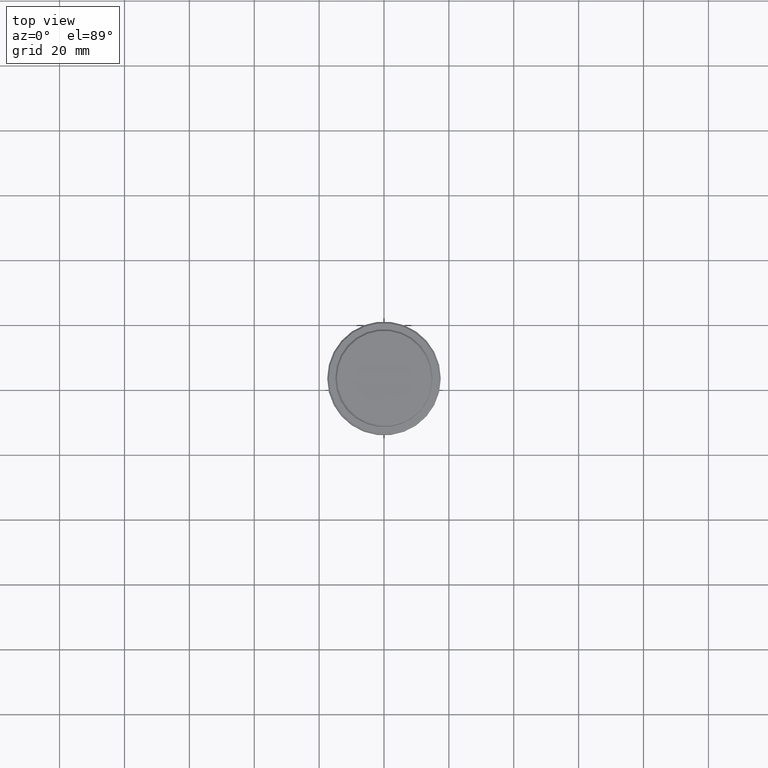
[diagram: clean part render]
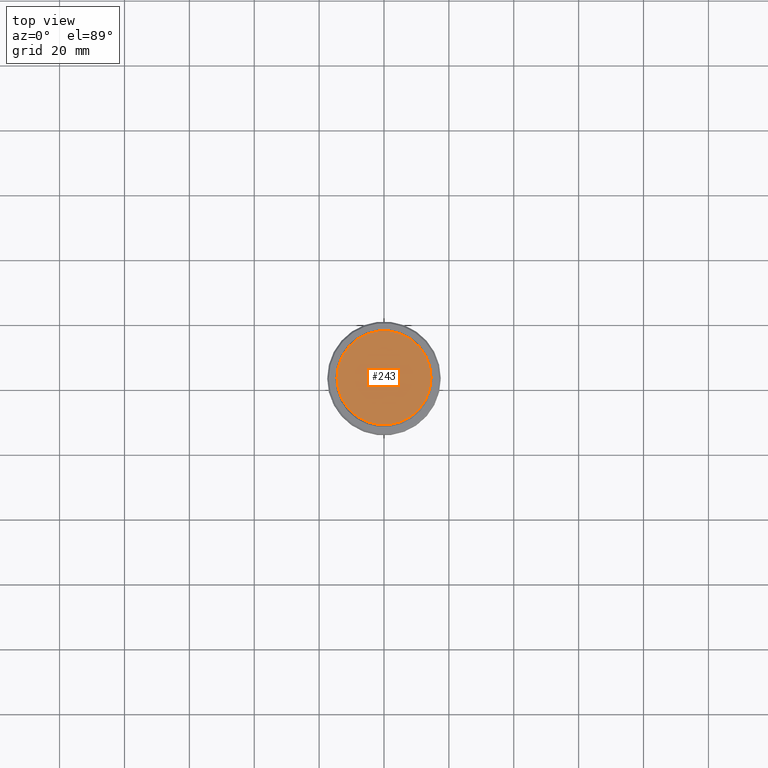
[diagram: same view with one face highlighted and labeled with its STEP entity id]
A machine part, top view. The second image highlights one B-rep face of the part: STEP entity #243.
In plain terms, the highlighted planar face has unit normal (0, -0, 1).
Its self-contained STEP definition (entity closure, byte-faithful):
#81 = CIRCLE ( 'NONE', #1362, 14.49999999999998401 ) ;
#99 = EDGE_CURVE ( 'NONE', #1263, #874, #81, .T. ) ;
#243 = ADVANCED_FACE ( 'NONE', ( #747 ), #956, .T. ) ;
#260 = DIRECTION ( 'NONE',  ( 0.000000000000000000, -0.000000000000000000, 1.000000000000000000 ) ) ;
#283 = EDGE_LOOP ( 'NONE', ( #441, #1222 ) ) ;
#297 = CARTESIAN_POINT ( 'NONE',  ( 0.000000000000000000, 0.000000000000000000, 0.000000000000000000 ) ) ;
#301 = DIRECTION ( 'NONE',  ( 1.000000000000000000, 0.000000000000000000, 0.000000000000000000 ) ) ;
#352 = AXIS2_PLACEMENT_3D ( 'NONE', #980, #260, #679 ) ;
#356 = CIRCLE ( 'NONE', #1364, 14.49999999999998401 ) ;
#441 = ORIENTED_EDGE ( 'NONE', *, *, #99, .T. ) ;
#564 = CARTESIAN_POINT ( 'NONE',  ( 14.49999999999998401, 1.806354028742345013E-15, 0.000000000000000000 ) ) ;
#632 = EDGE_CURVE ( 'NONE', #874, #1263, #356, .T. ) ;
#679 = DIRECTION ( 'NONE',  ( 1.000000000000000000, 0.000000000000000000, 0.000000000000000000 ) ) ;
#747 = FACE_OUTER_BOUND ( 'NONE', #283, .T. ) ;
#874 = VERTEX_POINT ( 'NONE', #564 ) ;
#908 = CARTESIAN_POINT ( 'NONE',  ( -14.49999999999998401, 0.000000000000000000, 0.000000000000000000 ) ) ;
#956 = PLANE ( 'NONE',  #352 ) ;
#980 = CARTESIAN_POINT ( 'NONE',  ( 0.000000000000000000, 0.000000000000000000, 0.000000000000000000 ) ) ;
#987 = CARTESIAN_POINT ( 'NONE',  ( 0.000000000000000000, 0.000000000000000000, 0.000000000000000000 ) ) ;
#1088 = DIRECTION ( 'NONE',  ( 1.000000000000000000, 0.000000000000000000, 0.000000000000000000 ) ) ;
#1222 = ORIENTED_EDGE ( 'NONE', *, *, #632, .T. ) ;
#1263 = VERTEX_POINT ( 'NONE', #908 ) ;
#1324 = DIRECTION ( 'NONE',  ( -0.000000000000000000, -0.000000000000000000, 1.000000000000000000 ) ) ;
#1362 = AXIS2_PLACEMENT_3D ( 'NONE', #297, #1379, #301 ) ;
#1364 = AXIS2_PLACEMENT_3D ( 'NONE', #987, #1324, #1088 ) ;
#1379 = DIRECTION ( 'NONE',  ( -0.000000000000000000, -0.000000000000000000, 1.000000000000000000 ) ) ;